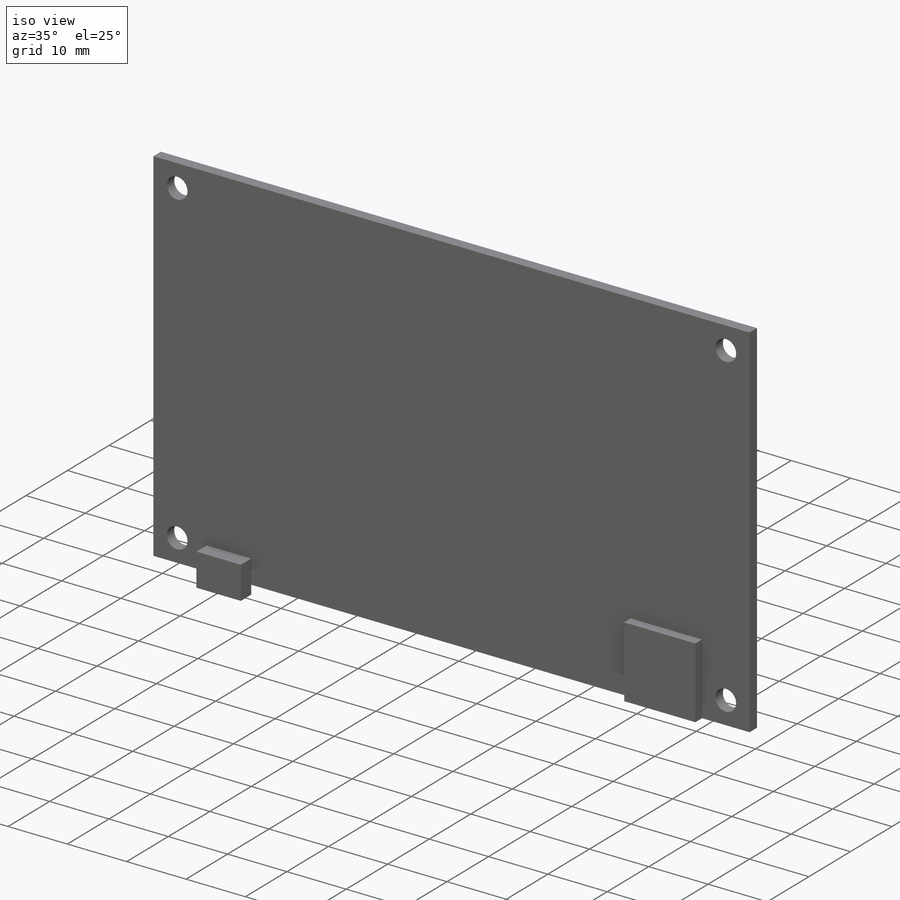
[diagram: iso view]
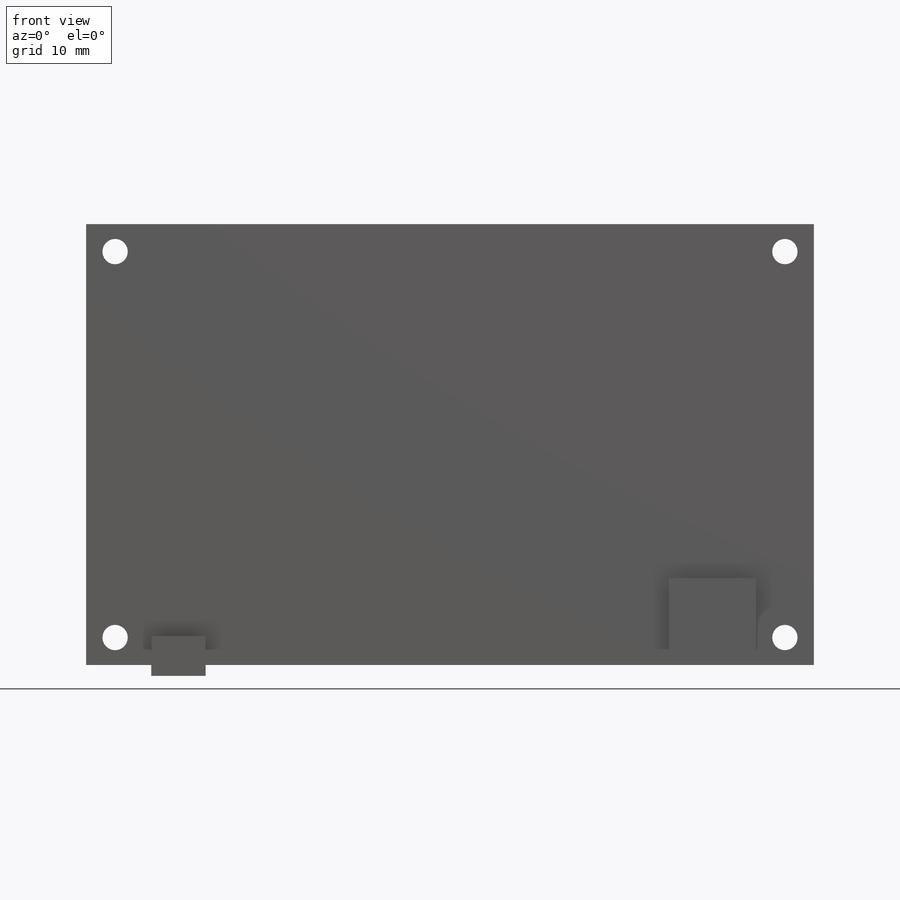
[diagram: front view]
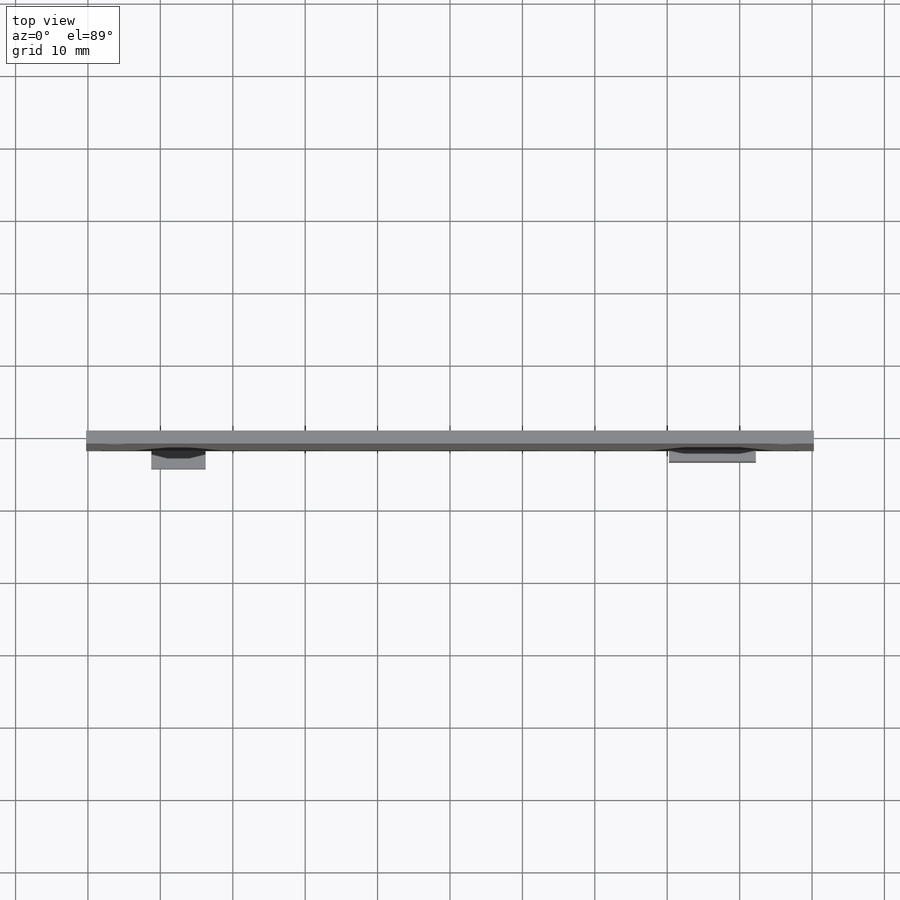
[diagram: top view]
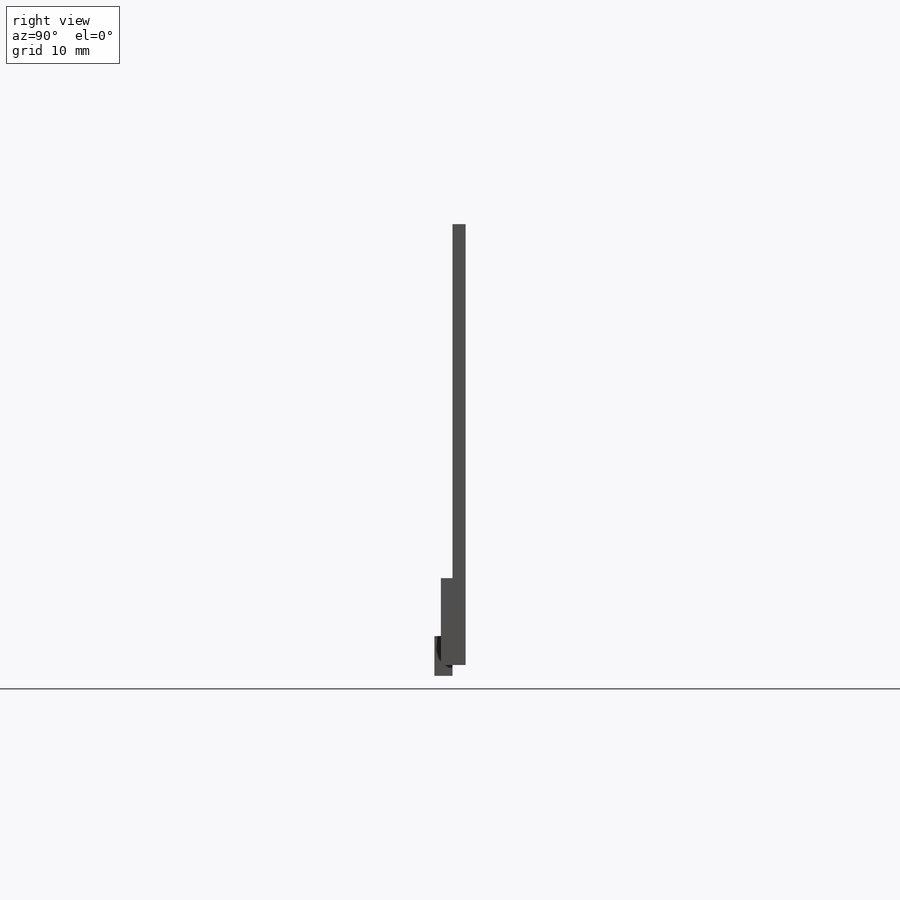
[diagram: right view]
SOLIDWORKS PART (.sldprt)
format: sldprt  version: not decoded by parser v0  size: 193,536 bytes
history: native  units: mm
features: sketch x4, extrude x3, material x1, cut_extrude x1, mirror x1 (+11 scaffold rows collapsed)
feature tree (21):
  scaffold x11  (default folders/planes/origin — collapsed)
  material  "Material <not specified>"
  sketch  "Sketch1"  dims[D1=60.9mm D2=100.5mm]
  extrude  "Boss-Extrude1"  Depth=1.8mm
  sketch  "Sketch2"  dims[D2=3.5mm D1=46.25mm D3=3.8mm]
  cut_extrude  "Cut-Extrude1"  [1 undecoded]
  mirror  "Mirror1"
  sketch  "Sketch3"  dims[D1=12.0mm D2=8.0mm]
  extrude  "Boss-Extrude2"  Depth=3.41mm
  sketch  "Sketch4"  dims[D1=7.5mm D2=1.5mm D3=5.5mm D4=9.0mm]
  extrude  "Boss-Extrude3"  Depth=4.3mm
decode coverage: 7 of 9 modeling features carry decoded parameters
note: 1 parameter value undecoded
note: suppression state not decoded; provenance and decode notes live in map.json
